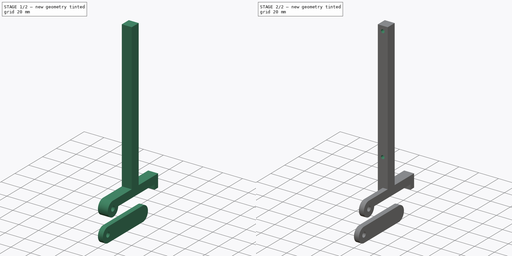
[diagram: build sequence overview — one tinted view per stage of 2, left to right]
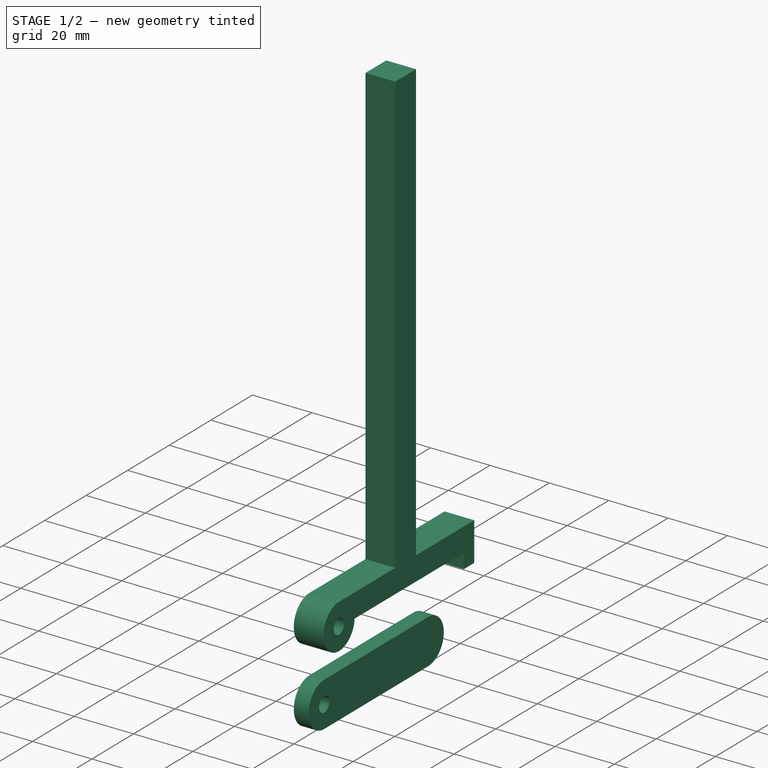
[diagram: stage 1 of 2 — iso view after this stage's code; geometry added in this stage tinted green]
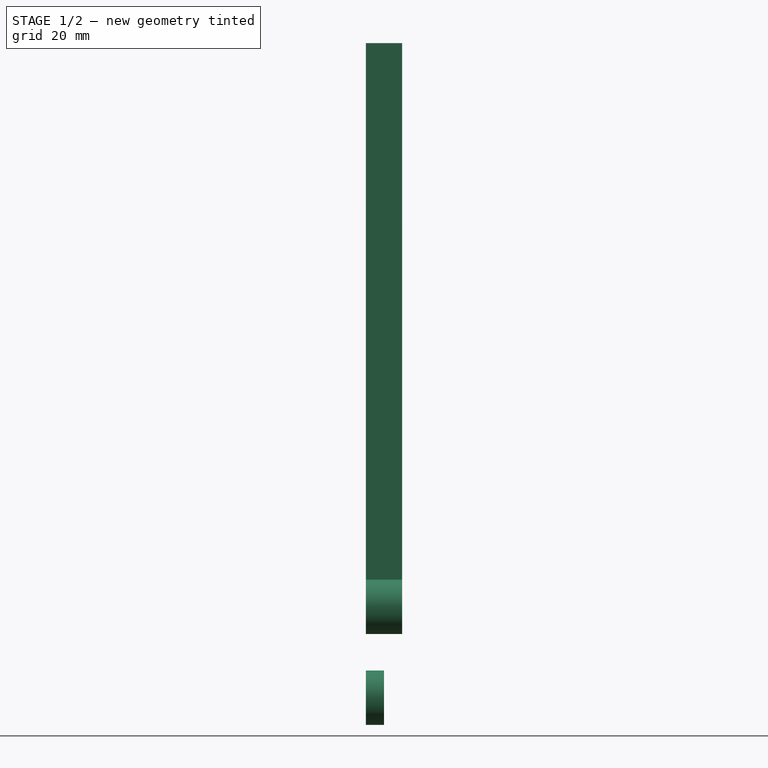
[diagram: stage 1 of 2 — front view after this stage's code; geometry added in this stage tinted green]
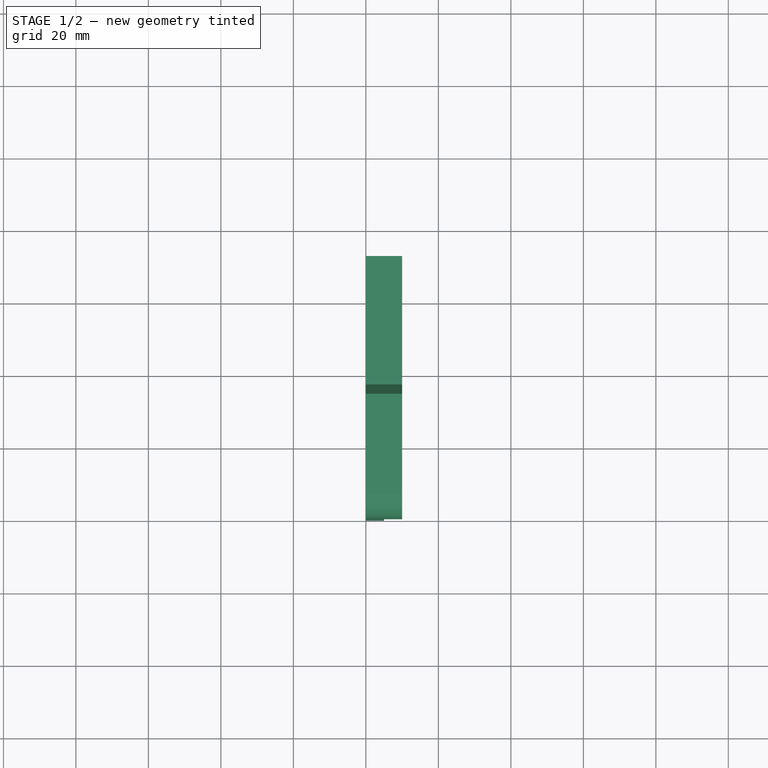
[diagram: stage 1 of 2 — top view after this stage's code; geometry added in this stage tinted green]
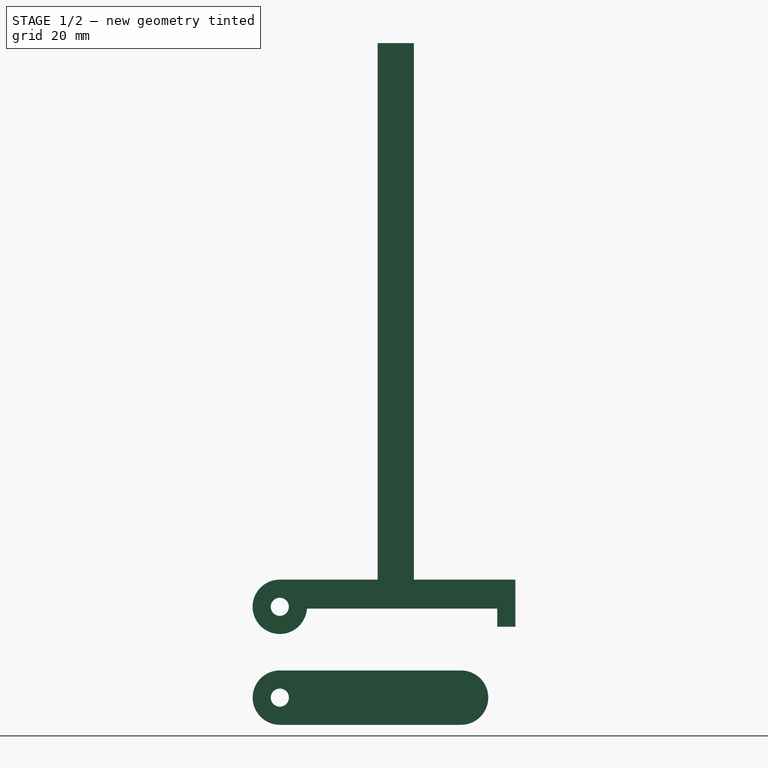
[diagram: stage 1 of 2 — right view after this stage's code; geometry added in this stage tinted green]
FCSTD DOCUMENT  (FreeCAD 1.0R39285 (Git))
Label: waveshare-display-frame
License: All rights reserved
LicenseURL: https://en.wikipedia.org/wiki/All_rights_reserved
objects: Sketcher::SketchObject×4, PartDesign::Pad×2, PartDesign::Pocket×2, PartDesign::Body×2
note: 22 computed .brp shape members not serialized (recipe doc carries the construction recipe); baked Part::Feature solids carry a one-line shape summary decoded from their .brp

FEATURE [Sketcher::SketchObject] Sketch
  ArcFitTolerance = 1e-06
  AttachmentSupport = -> [YZ_Plane]
  FullyConstrained = true
  MakeInternals = false
  MapMode = 5
  Placement = pos=(0,0,0) rot=(0.57735,0.57735,0.57735;2.0944rad)
  sketch-geometry (17):
    g0: LineSegment StartX=34.4833 StartY=156 StartZ=0 EndX=44.4833 EndY=156 EndZ=0
    g1: LineSegment StartX=44.4833 StartY=156 StartZ=0 EndX=44.4833 EndY=8 EndZ=0
    g2: LineSegment StartX=44.4833 StartY=8 StartZ=0 EndX=72.4833 EndY=8 EndZ=0
    g3: LineSegment StartX=72.4833 StartY=8 StartZ=0 EndX=72.4833 EndY=-5 EndZ=0
    g4: LineSegment StartX=72.4833 StartY=-5 StartZ=0 EndX=67.4833 EndY=-5 EndZ=0
    g5: LineSegment StartX=67.4833 StartY=-5 StartZ=0 EndX=67.4833 EndY=0 EndZ=0
    g6: LineSegment StartX=7.48331 StartY=8 StartZ=0 EndX=34.4833 EndY=8 EndZ=0
    g7: LineSegment StartX=34.4833 StartY=8 StartZ=0 EndX=34.4833 EndY=156 EndZ=0
    g8: ArcOfCircle CenterX=7.48331 CenterY=0.5 CenterZ=0 NormalX=0 NormalY=0 NormalZ=1 AngleXU=0 Radius=7.5 StartAngle=1.5708 EndAngle=6.21647
    g9: LineSegment StartX=14.9666 StartY=0 StartZ=0 EndX=67.4833 EndY=0 EndZ=0
    g10: LineSegment [constr] StartX=34.4833 StartY=8 StartZ=0 EndX=44.4833 EndY=8 EndZ=0
    g11: Circle CenterX=7.48331 CenterY=0.5 CenterZ=0 NormalX=0 NormalY=0 NormalZ=1 AngleXU=0 Radius=2.5
    g12: LineSegment [constr] StartX=41.2794 StartY=41 StartZ=0 EndX=66.8914 EndY=41 EndZ=0
    g13: LineSegment [constr] StartX=44.8636 StartY=151 StartZ=0 EndX=70.4756 EndY=151 EndZ=0
    g14: LineSegment [constr] StartX=41.357 StartY=45 StartZ=0 EndX=78.0255 EndY=45 EndZ=0
    g15: LineSegment [constr] StartX=57.4833 StartY=25.1289 StartZ=0 EndX=57.4833 EndY=-10.7333 EndZ=0
    g16: LineSegment [constr] StartX=57.4833 StartY=153.301 StartZ=0 EndX=57.4833 EndY=37.5819 EndZ=0
  constraints (50):
    c: Horizontal(g0)
    c: Coincident(g1,g0)
    c: Vertical(g1)
    c: Coincident(g2,g1)
    c: Horizontal(g2)
    c: Coincident(g3,g2)
    c: Vertical(g3)
    c: Coincident(g4,g3)
    c: Horizontal(g4)
    c: Coincident(g5,g4)
    c: PointOnObject(g5,g-1)
    c: Vertical(g5)
    c: Horizontal(g6)
    c: Coincident(g7,g6)
    c: Coincident(g7,g0)
    c: Vertical(g7)
    c: Tangent(g6,g8) = 1.5708
    c: Coincident(g9,g8)
    c: Coincident(g9,g5)
    c: Horizontal(g9)
    c: DistanceY(g8,g6) = 8
    c: DistanceX(g4,g4) = 5
    c: Distance(g5,g5) = 5
    c: Diameter(g8) = 15
    c: Coincident(g10,g6)
    c: Coincident(g10,g1)
    c: Horizontal(g10)
    c: Distance(g0,g0) = 10
    c: Diameter(g11) = 5
    c: Coincident(g11,g8)
    c: PointOnObject(g-1,g8)
    c: Horizontal(g12)
    c: Horizontal(g13)
    c: Equal(g13,g12)
    c: DistanceY(g12,g13) = 110  'Lochabstand'
    c: Horizontal(g14)
    c: DistanceY(g12,g14) = 4
    c: DistanceY(g5,g14) = 45  'Oberkante Monitor zu Unterkante Mini-Monitor'
    c: DistanceY(g13,g0) = 5
    c: Block(g10)
    c: Block(g13)
    c: Block(g14)
    c: Block(g12)
    c: DistanceX(g6,g5) = 60
    c: Vertical(g15)
    c: DistanceX(g15,g5) = 10
    c: DistanceX(g1,g16) = 13
    c: Tangent(g16,g15)
    c: Block(g16)
    c: Block(g15)
FEATURE [PartDesign::Pad] Pad
  Direction = (1,0,0)
  Length = 10
  Length2 = 10
  Placement = pos=(0,0,0) rot=(1,1,1;2.0944rad)
  Profile = -> Sketch
  ReferenceAxis = -> Sketch [N_Axis]
  Refine = true
  Suppressed = false
  Type = 0
FEATURE [PartDesign::Body] Body  label="Stütze"
  AllowCompound = false
  Group = -> [Sketch,Pad,Sketch001,Pocket,Sketch002,Pocket001]
  Origin = -> Origin
  Tip = -> Pocket001
FEATURE [Sketcher::SketchObject] Sketch003
  ArcFitTolerance = 1e-06
  AttachmentSupport = -> [YZ_Plane001]
  FullyConstrained = true
  MakeInternals = false
  MapMode = 5
  Placement = pos=(0,0,0) rot=(0.57735,0.57735,0.57735;2.0944rad)
  sketch-geometry (8):
    g0: ArcOfCircle CenterX=7.5 CenterY=-24.5601 CenterZ=0 NormalX=0 NormalY=0 NormalZ=1 AngleXU=0 Radius=7.5 StartAngle=1.5708 EndAngle=4.71239
    g1: LineSegment StartX=7.5 StartY=-17.0601 StartZ=0 EndX=57.5 EndY=-17.0601 EndZ=0
    g2: LineSegment StartX=7.5 StartY=-32.0601 StartZ=0 EndX=57.5 EndY=-32.0601 EndZ=0
    g3: ArcOfCircle CenterX=57.5 CenterY=-24.5601 CenterZ=0 NormalX=0 NormalY=0 NormalZ=1 AngleXU=0 Radius=7.5 StartAngle=4.71239 EndAngle=7.85398
    g4: LineSegment [constr] StartX=7.5 StartY=-9.73649 StartZ=0 EndX=7.5 EndY=-36.828 EndZ=0
    g5: LineSegment [constr] StartX=57.5 StartY=-7.18068 StartZ=0 EndX=57.5 EndY=-37.5096 EndZ=0
    g6: Circle CenterX=7.5 CenterY=-24.5601 CenterZ=0 NormalX=0 NormalY=0 NormalZ=1 AngleXU=0 Radius=2.5
    g7: LineSegment [constr] StartX=49.4411 StartY=-24.5601 StartZ=0 EndX=75.0082 EndY=-24.5601 EndZ=0
  constraints (23):
    c: Diameter(g0) = 15
    c: Coincident(g1,g0)
    c: Horizontal(g1)
    c: Coincident(g2,g0)
    c: Horizontal(g2)
    c: Coincident(g3,g2)
    c: Coincident(g1,g3)
    c: Vertical(g4)
    c: Vertical(g5)
    c: DistanceX(g4,g5) = 50
    c: PointOnObject(g0,g4)
    c: PointOnObject(g0,g4)
    c: PointOnObject(g0,g4)
    c: PointOnObject(g3,g5)
    c: PointOnObject(g1,g5)
    c: PointOnObject(g2,g5)
    c: Diameter(g6) = 5
    c: Coincident(g6,g0)
    c: Block(g4)
    c: Block(g5)
    c: Horizontal(g7)
    c: Block(g7)
    c: PointOnObject(g3,g7)
FEATURE [PartDesign::Pad] Pad001
  Direction = (1,0,0)
  Length = 5
  Length2 = 10
  Placement = pos=(0,0,0) rot=(1,1,1;2.0944rad)
  Profile = -> Sketch003
  ReferenceAxis = -> Sketch003 [N_Axis]
  Refine = true
  Suppressed = false
  Type = 0
FEATURE [PartDesign::Body] Body001  label="Beinchen"
  AllowCompound = false
  Group = -> [Sketch003,Pad001]
  Origin = -> Origin001
  Tip = -> Pad001
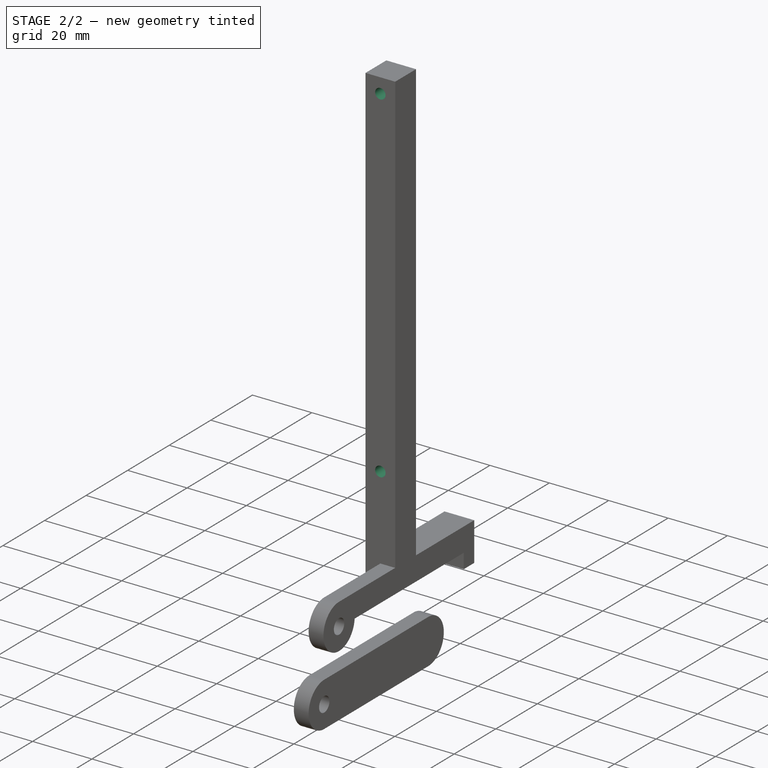
[diagram: stage 2 of 2 — iso view after this stage's code; geometry added in this stage tinted green]
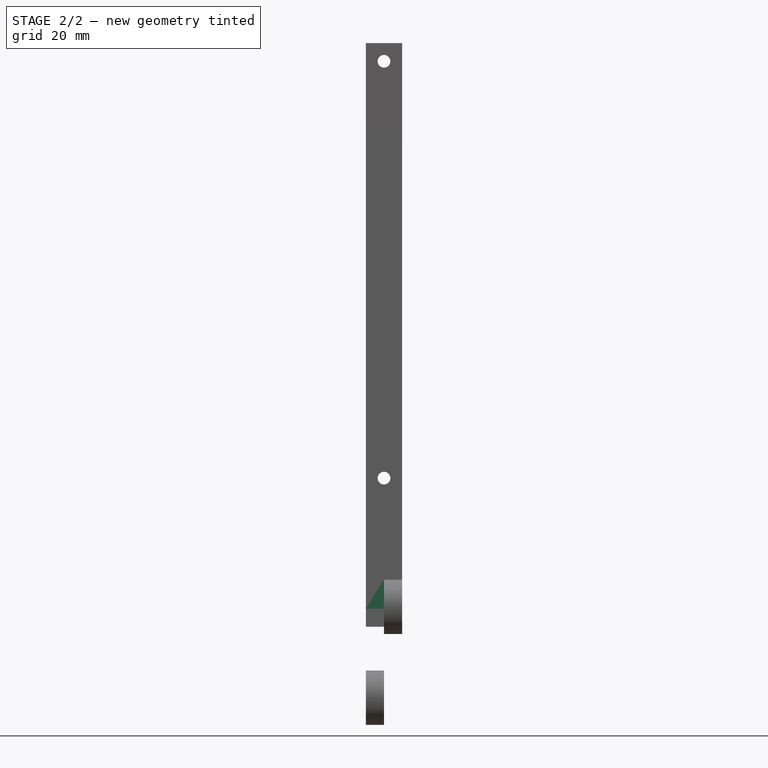
[diagram: stage 2 of 2 — front view after this stage's code; geometry added in this stage tinted green]
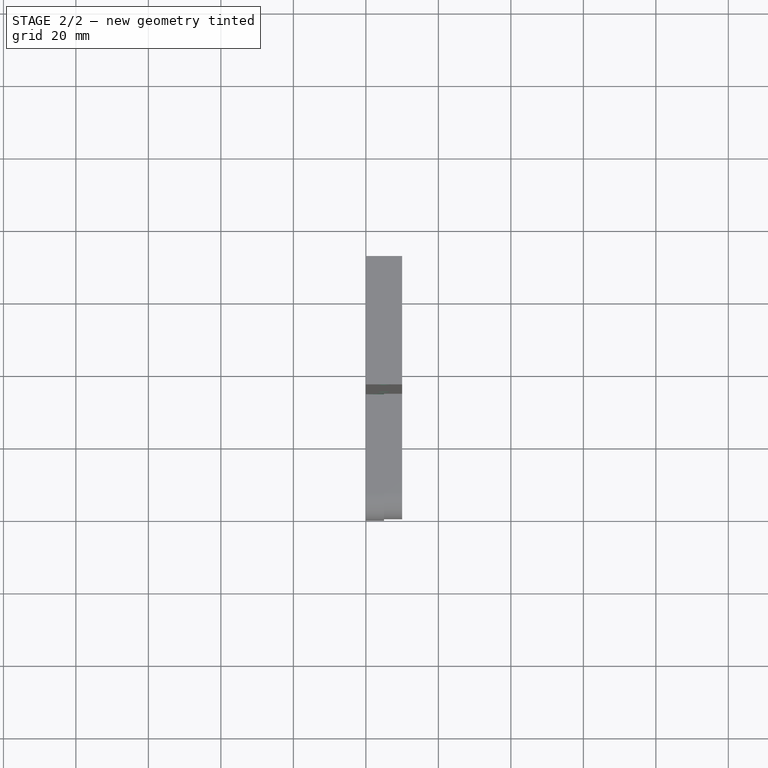
[diagram: stage 2 of 2 — top view after this stage's code; geometry added in this stage tinted green]
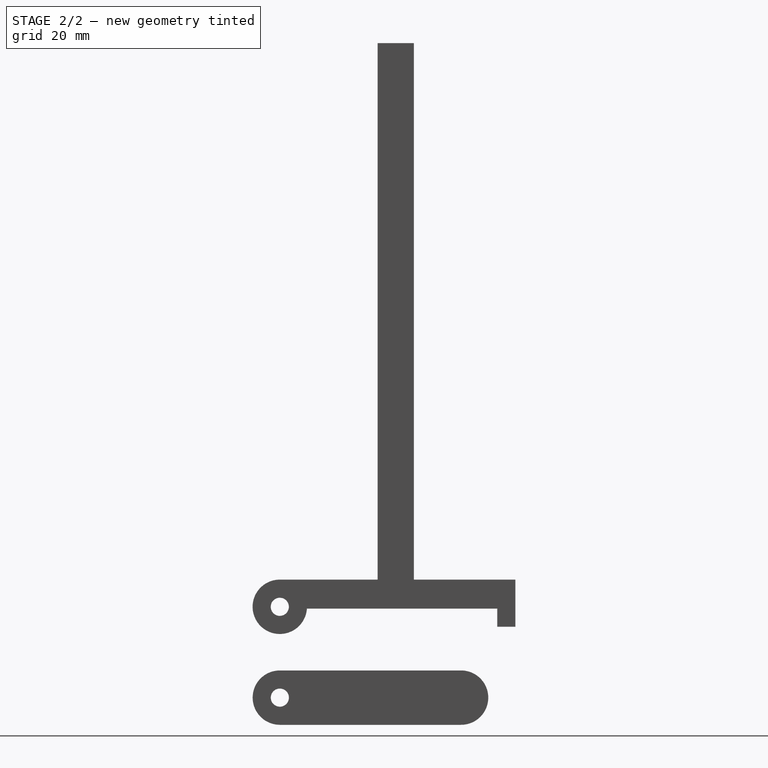
[diagram: stage 2 of 2 — right view after this stage's code; geometry added in this stage tinted green]
FEATURE [Sketcher::SketchObject] Sketch001
  ArcFitTolerance = 1e-06
  AttachmentSupport = -> [YZ_Plane]
  ExternalGeometry = -> [Pad]
  FullyConstrained = false
  MakeInternals = false
  MapMode = 5
  Placement = pos=(0,0,0) rot=(0.57735,0.57735,0.57735;2.0944rad)
  sketch-geometry (4):
    g0: LineSegment StartX=-20.3956 StartY=14.7866 StartZ=0 EndX=-20.3956 EndY=-13.817 EndZ=0
    g1: LineSegment StartX=-20.3956 StartY=-13.817 StartZ=0 EndX=34.4833 EndY=-13.817 EndZ=0
    g2: LineSegment StartX=34.4833 StartY=14.7866 StartZ=0 EndX=-20.3956 EndY=14.7866 EndZ=0
    g3: LineSegment StartX=34.4833 StartY=14.7866 StartZ=0 EndX=34.4833 EndY=-13.817 EndZ=0
  constraints (8):
    c: Coincident(g0,g1)
    c: Coincident(g2,g0)
    c: Vertical(g0)
    c: Horizontal(g1)
    c: Horizontal(g2)
    c: Tangent(g3,g-3)
    c: Coincident(g2,g3)
    c: Coincident(g1,g3)
FEATURE [PartDesign::Pocket] Pocket
  BaseFeature = -> Pad
  Direction = (-1,0,0)
  Length = 5
  Length2 = 5
  Placement = pos=(0,0,0) rot=(1,1,1;2.0944rad)
  Profile = -> Sketch001
  ReferenceAxis = -> Sketch001 [N_Axis]
  Refine = true
  Reversed = true
  Suppressed = false
  Type = 0
FEATURE [Sketcher::SketchObject] Sketch002
  ArcFitTolerance = 1e-06
  AttachmentSupport = -> [XZ_Plane]
  ExternalGeometry = -> [Pocket]
  FullyConstrained = false
  MakeInternals = false
  MapMode = 5
  Placement = pos=(0,0,0) rot=(1,0,0;1.5708rad)
  sketch-geometry (3):
    g0: Circle CenterX=5 CenterY=151 CenterZ=0 NormalX=0 NormalY=0 NormalZ=1 AngleXU=0 Radius=1.75
    g1: LineSegment [constr] StartX=5 StartY=161.118 StartZ=0 EndX=5 EndY=-17.7083 EndZ=0
    g2: Circle CenterX=5 CenterY=36 CenterZ=0 NormalX=0 NormalY=0 NormalZ=1 AngleXU=0 Radius=1.75
  constraints (7):
    c: Diameter(g0) = 3.5
    c: Symmetric(g-3,g-3,g1)
    c: PointOnObject(g0,g1)
    c: DistanceY(g0,g-3) = 5
    c: PointOnObject(g2,g1)
    c: Diameter(g2) = 3.5
    c: DistanceY(g2,g0) = 115
FEATURE [PartDesign::Pocket] Pocket001
  BaseFeature = -> Pocket
  Direction = (0,1,-2e-16)
  Length = 100
  Length2 = 5
  Placement = pos=(0,0,0) rot=(1,1,1;2.0944rad)
  Profile = -> Sketch002
  ReferenceAxis = -> Sketch002 [N_Axis]
  Refine = true
  Suppressed = false
  Type = 0
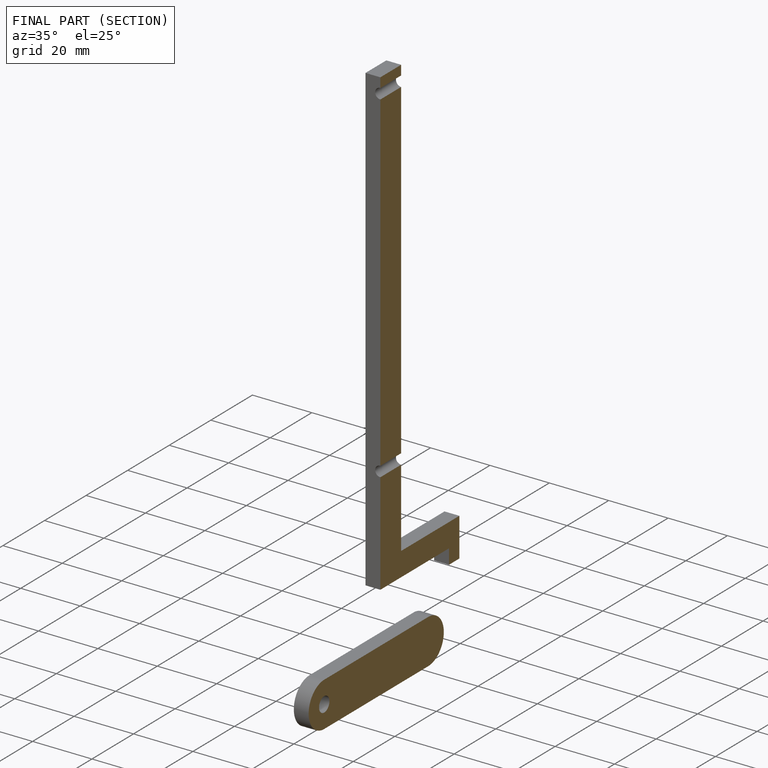
[diagram: finished part — half-section view (interior)]
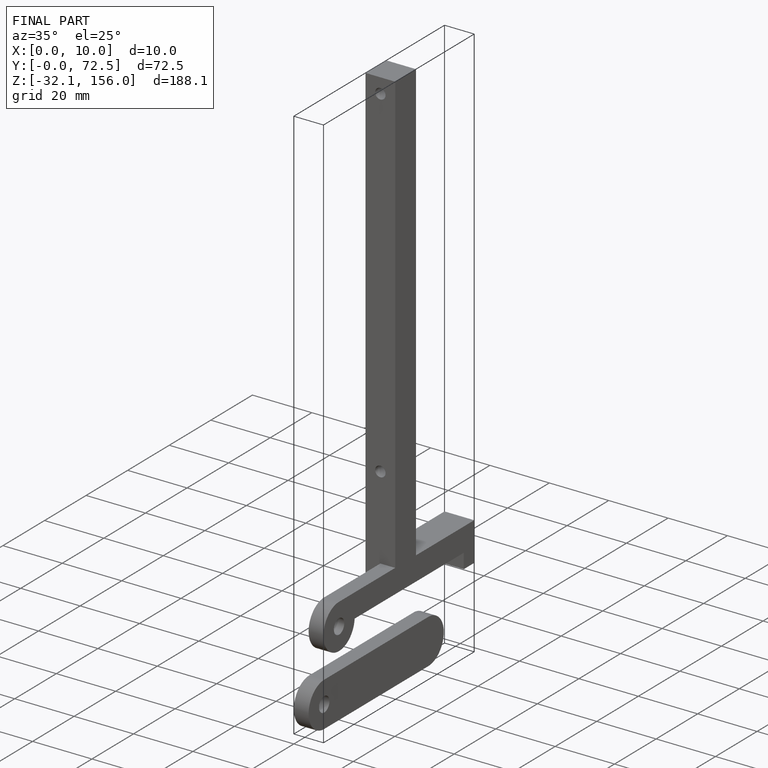
[diagram: finished part — iso view with bounding-box wireframe]
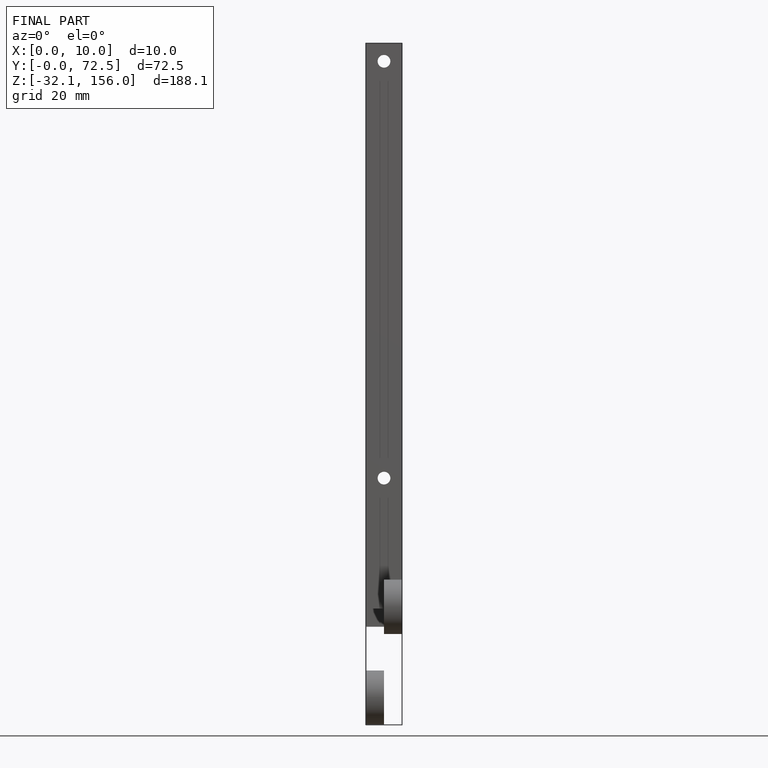
[diagram: finished part — front view with bounding-box wireframe]
